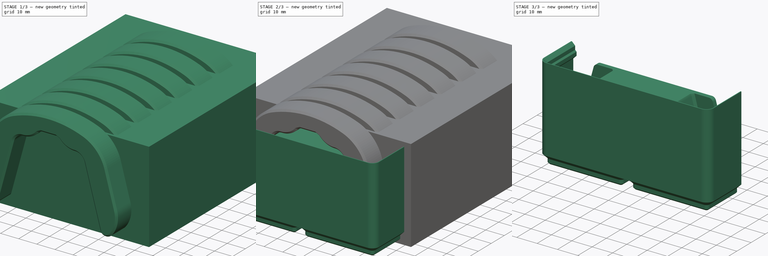
[diagram: build sequence overview — one tinted view per stage of 3, left to right]
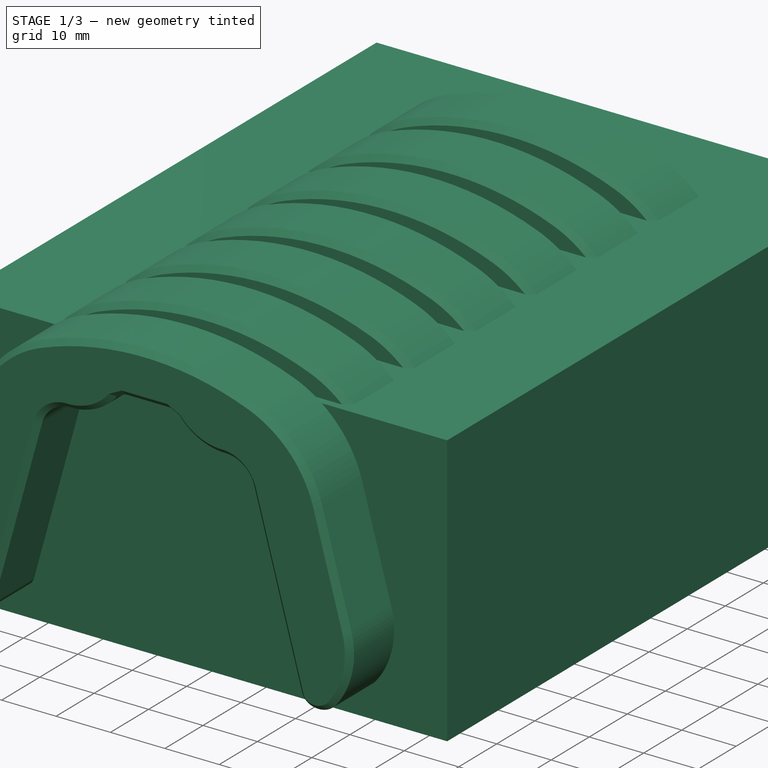
[diagram: stage 1 of 3 — iso view after this stage's code; geometry added in this stage tinted green]
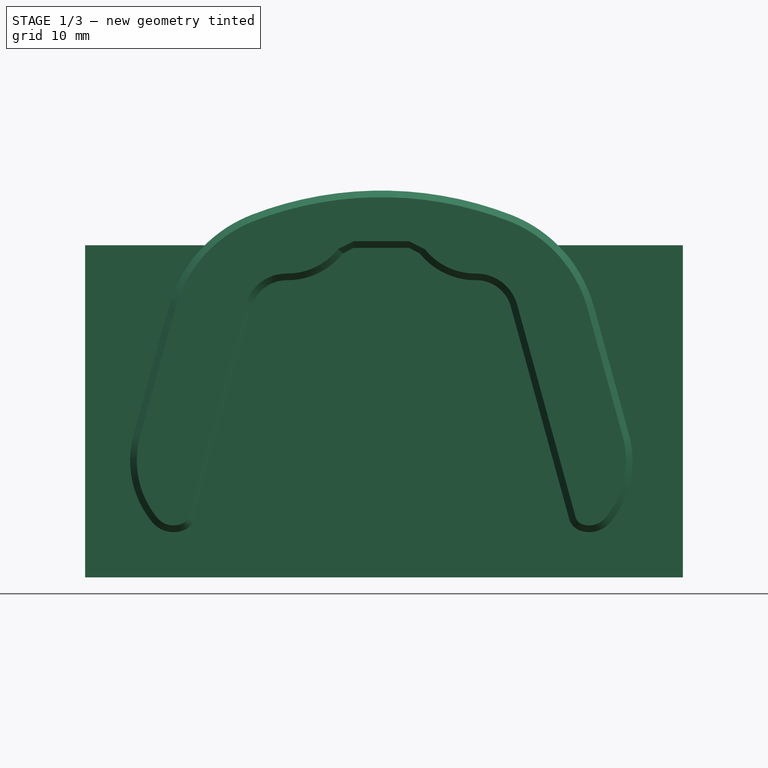
[diagram: stage 1 of 3 — front view after this stage's code; geometry added in this stage tinted green]
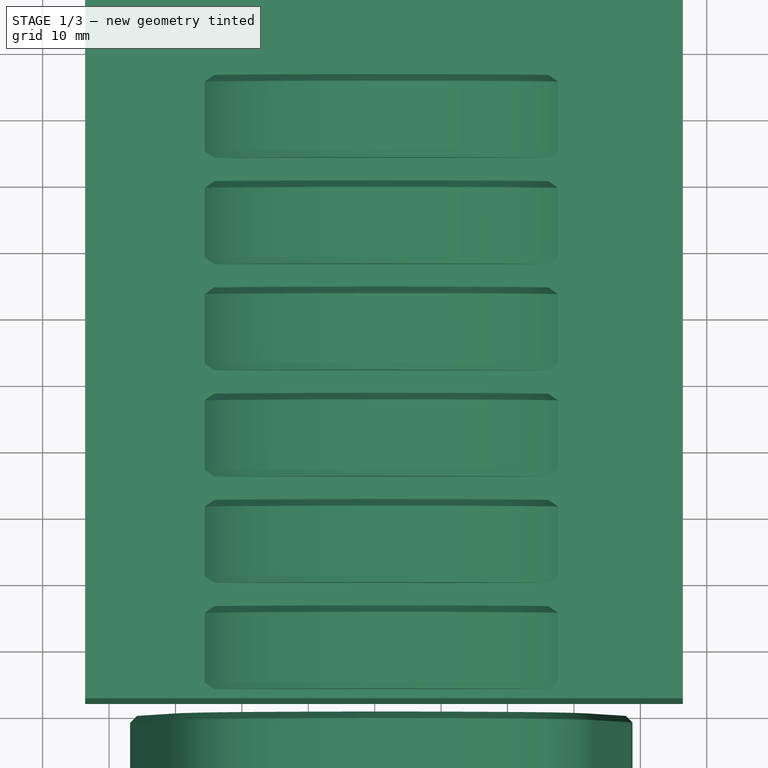
[diagram: stage 1 of 3 — top view after this stage's code; geometry added in this stage tinted green]
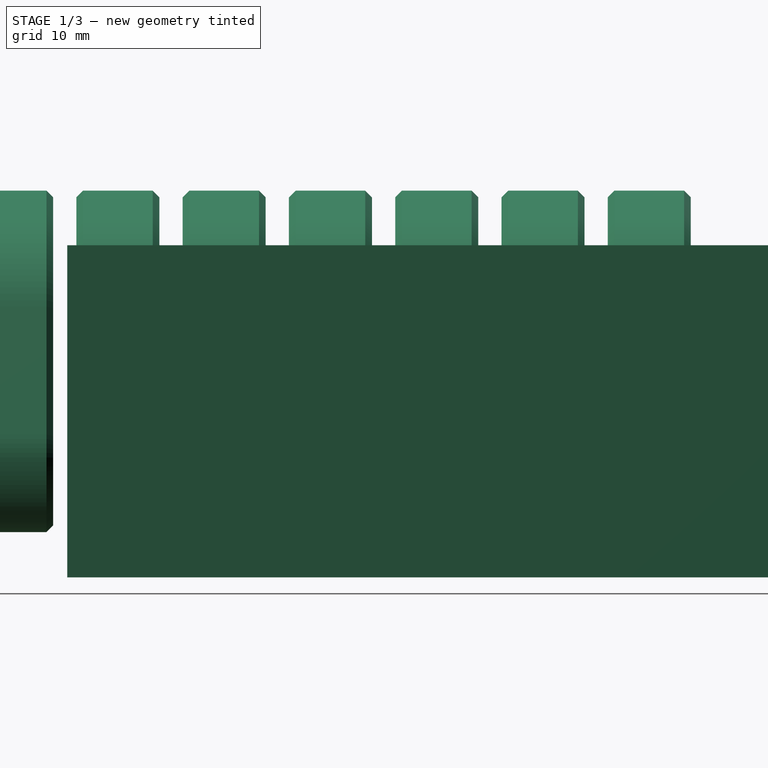
[diagram: stage 1 of 3 — right view after this stage's code; geometry added in this stage tinted green]
FCSTD DOCUMENT  (FreeCAD 1.0R39109 (Git))
Label: clamp-holder
License: All rights reserved
objects: App::Link×7, Part::Cut×2, PartDesign::Plane×1, PartDesign::FeaturePython×1, Sketcher::SketchObject×1, PartDesign::SubShapeBinder×1, PartDesign::Pad×1, PartDesign::Body×1, App::VarSet×1, Part::Compound×1, Part::Box×1
note: 14 computed .brp shape members not serialized (recipe doc carries the construction recipe); baked Part::Feature solids carry a one-line shape summary decoded from their .brp
EXTERNAL_REF file=clamp-template.FCStd obj=Body

FEATURE [Sketcher::SketchObject] Sketch
  ArcFitTolerance = 1e-06
  AttachmentSupport = -> [SimpleStorageBin]
  ExternalGeometry = -> [SimpleStorageBin]
  FullyConstrained = true
  MakeInternals = false
  MapMode = 5
  Placement = pos=(0,-20.75,0) rot=(1,0,0;1.5708rad)
  sketch-geometry (8):
    g0: LineSegment StartX=59 StartY=-35 StartZ=0 EndX=50.2711 EndY=-3.26952 EndZ=0
    g1: LineSegment StartX=-17 StartY=-35 StartZ=0 EndX=-8.27113 EndY=-3.26952 EndZ=0
    g2: LineSegment StartX=-17 StartY=-35 StartZ=0 EndX=59 EndY=-35 EndZ=0
    g3: LineSegment StartX=48.3428 StartY=-1.8 StartZ=0 EndX=-6.34276 EndY=-1.8 EndZ=0
    g4: ArcOfCircle CenterX=-6.34276 CenterY=-3.8 CenterZ=0 NormalX=0 NormalY=0 NormalZ=1 AngleXU=0 Radius=2 StartAngle=1.5708 EndAngle=2.87314
    g5: GeomPoint [constr] X=-7.86687 Y=-1.8 Z=0
    g6: ArcOfCircle CenterX=48.3428 CenterY=-3.8 CenterZ=0 NormalX=0 NormalY=0 NormalZ=1 AngleXU=0 Radius=2 StartAngle=0.268454 EndAngle=1.5708
    g7: GeomPoint [constr] X=49.8669 Y=-1.8 Z=0
  constraints (18):
    c: Coincident(g0,g-3)
    c: PointOnObject(g7,g-4)
    c: Parallel(g-5,g0)
    c: Coincident(g1,g-3)
    c: PointOnObject(g5,g-4)
    c: Parallel(g1,g-8)
    c: Coincident(g2,g1)
    c: Coincident(g2,g0)
    c: PointOnObject(g5,g3)
    c: PointOnObject(g5,g1)
    c: Tangent(g3,g4) = -1.5708
    c: Tangent(g1,g4) = 1.5708
    c: PointOnObject(g7,g3)
    c: PointOnObject(g7,g0)
    c: Tangent(g3,g6) = -1.5708
    c: Tangent(g0,g6) = -1.5708
    c: Equal(g6,g4)
    c: Radius(g6) = 2
FEATURE [PartDesign::SubShapeBinder] Binder
  BindCopyOnChange = 0
  BindMode = 0
  ClaimChildren = false
  Context = -> Body [Binder.]
  Fuse = false
  MakeFace = true
  OffsetFill = false
  OffsetIntersection = false
  OffsetJoinType = 0
  OffsetOpenResult = false
  PartialLoad = false
  Relative = true
  Support = -> [Link]
  _Version = 2
FEATURE [PartDesign::Pad] Pad
  BaseFeature = -> SimpleStorageBin
  Direction = (0,-1,2e-16)
  Length = 10
  Length2 = 10
  Profile = -> Sketch
  ReferenceAxis = -> Sketch [N_Axis]
  Suppressed = false
  Type = 3
  UpToFace = -> SimpleStorageBin [Face189]
FEATURE [PartDesign::Body] Body  label="bin"
  AllowCompound = false
  Group = -> [DatumPlane,Binder,SimpleStorageBin,Sketch,Pad]
  Origin = -> Origin
  Tip = -> Pad
FEATURE [App::Link] Link001  label="template001"
  LinkPlacement = pos=(21,16,-8.15) rot=(1,0,0;1.5708rad)
  LinkedObject = -> <external clamp-template.FCStd>#Body
  Placement = pos=(21,16,-8.15) rot=(1,0,0;1.5708rad)
  expr: .Placement.Base.y = VarSet.start_dist + VarSet.clamp_dist
FEATURE [App::Link] Link002  label="template002"
  LinkPlacement = pos=(21,32,-8.15) rot=(1,0,0;1.5708rad)
  LinkedObject = -> <external clamp-template.FCStd>#Body
  Placement = pos=(21,32,-8.15) rot=(1,0,0;1.5708rad)
  expr: .Placement.Base.y = VarSet.start_dist + VarSet.clamp_dist * 2
FEATURE [App::Link] Link003  label="template003"
  LinkPlacement = pos=(21,48,-8.15) rot=(1,0,0;1.5708rad)
  LinkedObject = -> <external clamp-template.FCStd>#Body
  Placement = pos=(21,48,-8.15) rot=(1,0,0;1.5708rad)
  expr: .Placement.Base.y = VarSet.start_dist + VarSet.clamp_dist * 3
FEATURE [App::Link] Link004  label="template004"
  LinkPlacement = pos=(21,64,-8.15) rot=(1,0,0;1.5708rad)
  LinkedObject = -> <external clamp-template.FCStd>#Body
  Placement = pos=(21,64,-8.15) rot=(1,0,0;1.5708rad)
  expr: .Placement.Base.y = VarSet.start_dist + VarSet.clamp_dist * 4
FEATURE [App::Link] Link005  label="template005"
  LinkPlacement = pos=(21,80,-8.15) rot=(1,0,0;1.5708rad)
  LinkedObject = -> <external clamp-template.FCStd>#Body
  Placement = pos=(21,80,-8.15) rot=(1,0,0;1.5708rad)
  expr: .Placement.Base.y = VarSet.start_dist + VarSet.clamp_dist * 5
FEATURE [App::VarSet] VarSet
  clamp_dist = 16
  start_dist = 0
FEATURE [App::Link] Link006  label="template006"
  LinkPlacement = pos=(21,96,-8.15) rot=(1,0,0;1.5708rad)
  LinkedObject = -> <external clamp-template.FCStd>#Body
  Placement = pos=(21,96,-8.15) rot=(1,0,0;1.5708rad)
  expr: .Placement.Base.y = VarSet.start_dist + VarSet.clamp_dist * 6
FEATURE [Part::Compound] Compound
  Links = -> [Link,Link001,Link002,Link003,Link004,Link006,Link005]
  Placement = pos=(0,0,2.5) rot=(0,0,1;0rad)
FEATURE [Part::Box] Box  label="negative"
  AttacherType = Attacher::AttachEngine3D
  Height = 50
  Length = 90
  Placement = pos=(-23.6,2.13,-43.66) rot=(0,0,1;0rad)
  Width = 110
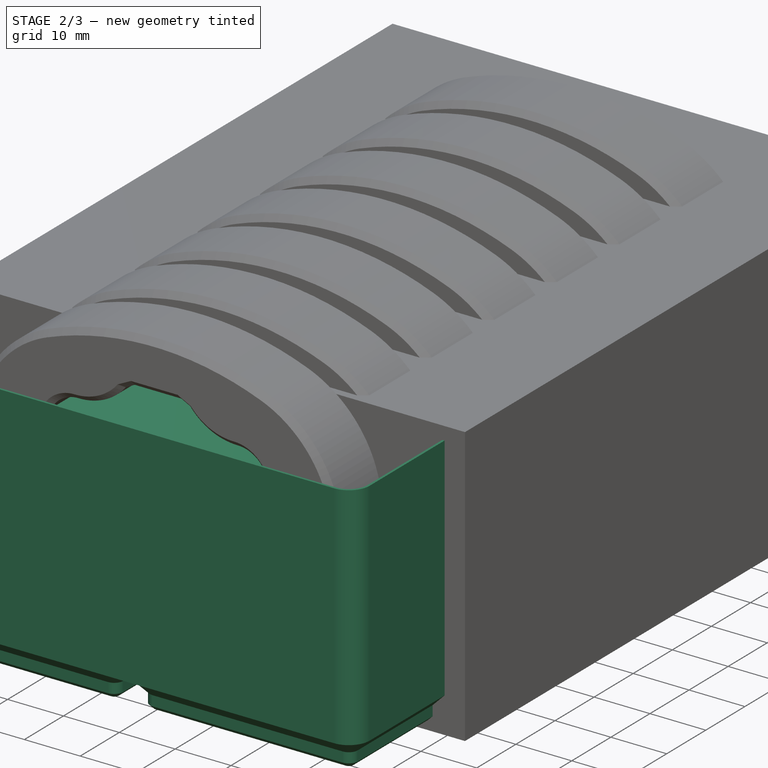
[diagram: stage 2 of 3 — iso view after this stage's code; geometry added in this stage tinted green]
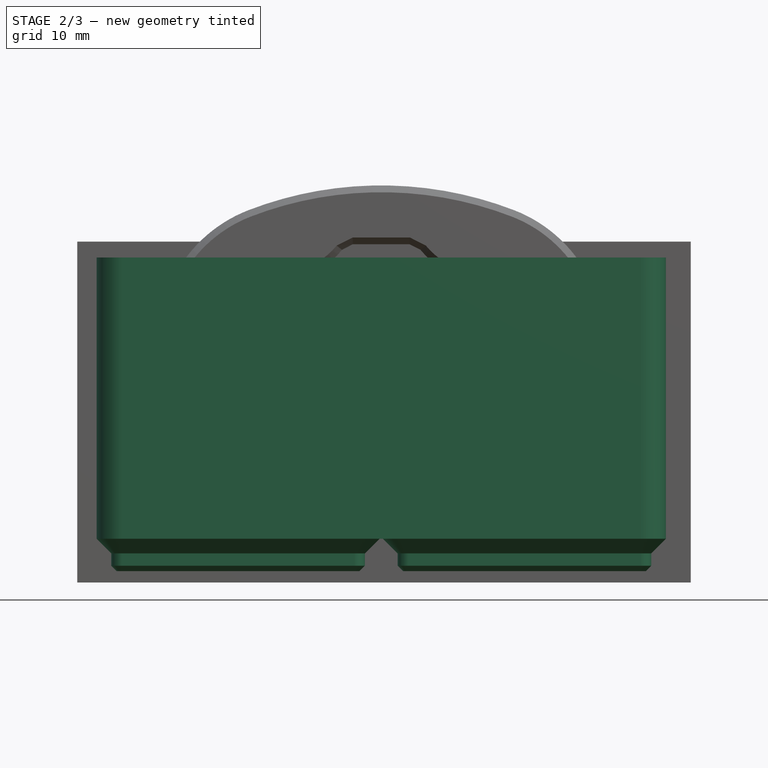
[diagram: stage 2 of 3 — front view after this stage's code; geometry added in this stage tinted green]
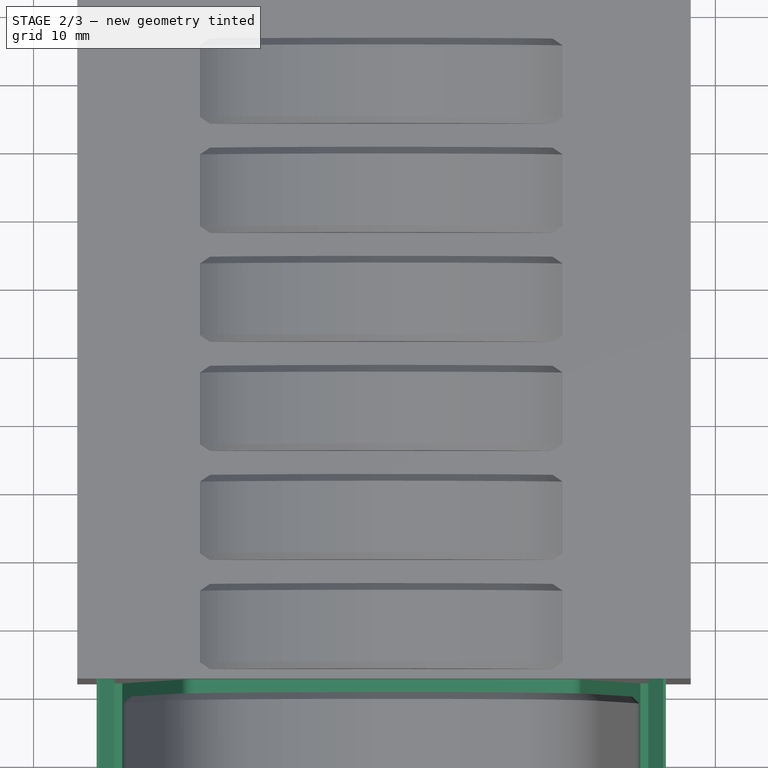
[diagram: stage 2 of 3 — top view after this stage's code; geometry added in this stage tinted green]
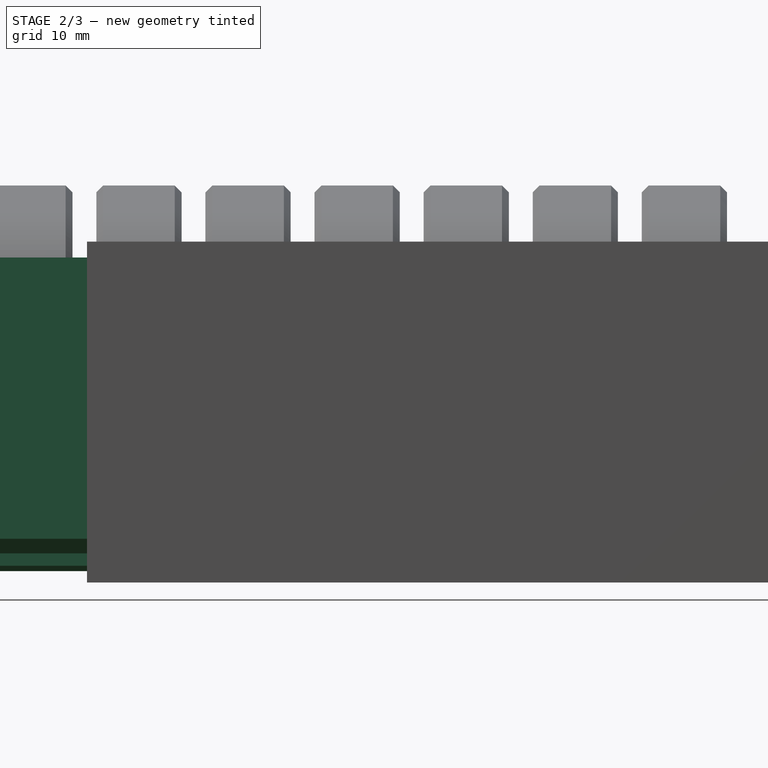
[diagram: stage 2 of 3 — right view after this stage's code; geometry added in this stage tinted green]
FEATURE [PartDesign::Plane] DatumPlane  label="orientation"
  AttachmentOffset = pos=(0,0,21) rot=(0,0,1;0rad)
  AttachmentSupport = -> [YZ_Plane]
  Length = 148.398
  MapMode = 5
  Placement = pos=(21,0,0) rot=(0.57735,0.57735,0.57735;2.0944rad)
  ResizeMode = 0
  Width = 85.6475
FEATURE [App::Link] Link  label="template"
  LinkPlacement = pos=(21,0,-8.15) rot=(1,0,0;1.5708rad)
  LinkedObject = -> <external clamp-template.FCStd>#Body
  Placement = pos=(21,0,-8.15) rot=(1,0,0;1.5708rad)
  expr: .Placement.Base.y = VarSet.start_dist
FEATURE [PartDesign::FeaturePython] SimpleStorageBin  # WARN: FeaturePython — macro-defined, semantics opaque (R4)
  BaseProfileBottomChamfer = 0.8
  BaseProfileHeight = 4.75
  BaseProfileTopChamfer = 2.15
  BaseProfileVerticalSection = 1.8
  BinBottomRadius = 0.8
  BinOuterRadius = 3.75
  BinUnit = 41.5
  BinVerticalRadius = 1.6
  CustomHeight = 42
  DividerThickness = 1.2
  GridSize = 42
  HeightUnitValue = 7
  HeightUnits = 6
  InsideFilletRadius = 1.85
  LabelShelfLength = 42
  LabelShelfPlacement = 0
  LabelShelfStyle = 0
  LabelShelfVerticalThickness = 1.2
  LabelShelfWidth = 12
  MagnetHoleDepth = 2.4
  MagnetHoleDiameter = 6.5
  MagnetHoleDistanceFromEdge = 8
  MagnetHoles = false
  NonStandardHeight = false
  Scoop = false
  ScoopRadius = 21
  ScrewHoleDepth = 6
  ScrewHoleDiameter = 3
  ScrewHoles = false
  SequentialBridgingLayerHeight = 0.2
  StackingLip = true
  StackingLipBottomChamfer = 0.7
  StackingLipTopChamfer = 1.5
  StackingLipTopLedge = 0.4
  StackingLipVerticalSection = 1.8
  Suppressed = false
  Tolerance = 0.25
  TotalHeight = 42
  UsableHeight = 35
  WallThickness = 1
  version = 0.6.0
  xDividerHeight = 0
  xDividers = 0
  xGridUnits = 2
  xTotalWidth = 83.5
  yDividerHeight = 0
  yDividers = 0
  yGridUnits = 3
  yTotalWidth = 125.5
FEATURE [Image::ImagePlane] measure
  Placement = pos=(0.57391,-5.51086,0) rot=(0,0,-1;0.017453rad)
  XSize = 124.813
  YSize = 166.418
FEATURE [Sketcher::SketchObject] Sketch
  ArcFitTolerance = 1e-06
  AttachmentSupport = -> [XY_Plane]
  FullyConstrained = true
  MakeInternals = false
  MapMode = 5
  sketch-geometry (20):
    g0: LineSegment [constr] StartX=-20.25 StartY=0 StartZ=0 EndX=20.25 EndY=0 EndZ=0
    g1: LineSegment [constr] StartX=-28.28 StartY=-29.19 StartZ=0 EndX=28.28 EndY=-29.19 EndZ=0
    g2: LineSegment StartX=-19.4907 StartY=2.76 StartZ=0 EndX=-28.3498 EndY=-29.4437 EndZ=0
    g3: LineSegment StartX=19.4907 StartY=2.76 StartZ=0 EndX=28.28 EndY=-29.19 EndZ=0
    g4: ArcOfCircle CenterX=-14.281 CenterY=1.32684 CenterZ=0 NormalX=0 NormalY=0 NormalZ=1 AngleXU=0 Radius=5.40325 StartAngle=1.56506 EndAngle=2.87314
    g5: ArcOfCircle CenterX=14.281 CenterY=1.32684 CenterZ=0 NormalX=0 NormalY=0 NormalZ=1 AngleXU=0 Radius=5.40325 StartAngle=0.268454 EndAngle=1.57654
    g6: ArcOfCircle CenterX=14.1881 CenterY=17.51 CenterZ=0 NormalX=0 NormalY=0 NormalZ=1 AngleXU=0 Radius=10.7802 StartAngle=3.72295 EndAngle=4.71813
    g7: ArcOfCircle CenterX=-14.1881 CenterY=17.51 CenterZ=0 NormalX=0 NormalY=0 NormalZ=1 AngleXU=0 Radius=10.7802 StartAngle=4.70665 EndAngle=5.70183
    g8: LineSegment StartX=-5.1789 StartY=11.59 StartZ=0 EndX=5.1789 EndY=11.59 EndZ=0
    g9: LineSegment StartX=-32 StartY=2.76 StartZ=0 EndX=-37.3011 EndY=-16.51 EndZ=0
    g10: ArcOfCircle CenterX=-23.1565 CenterY=-20.4011 CenterZ=0 NormalX=0 NormalY=0 NormalZ=1 AngleXU=0 Radius=14.67 StartAngle=2.87314 EndAngle=3.82495
    g11: ArcOfCircle CenterX=-31.2988 CenterY=-27.0308 CenterZ=0 NormalX=0 NormalY=0 NormalZ=1 AngleXU=0 Radius=4.17 StartAngle=3.82495 EndAngle=5.17803
    g12: ArcOfCircle CenterX=-30.3649 CenterY=-28.8893 CenterZ=0 NormalX=0 NormalY=0 NormalZ=1 AngleXU=0 Radius=2.09 StartAngle=5.17803 EndAngle=6.01473
    g13: ArcOfCircle CenterX=30.8171 CenterY=-28.4921 CenterZ=0 NormalX=0 NormalY=0 NormalZ=1 AngleXU=0 Radius=2.63133 StartAngle=3.41005 EndAngle=4.39394
    g14: ArcOfCircle CenterX=31.2988 CenterY=-27.0308 CenterZ=0 NormalX=0 NormalY=0 NormalZ=1 AngleXU=0 Radius=4.17 StartAngle=4.39394 EndAngle=5.59983
    g15: ArcOfCircle CenterX=23.1565 CenterY=-20.4011 CenterZ=0 NormalX=0 NormalY=0 NormalZ=1 AngleXU=0 Radius=14.67 StartAngle=5.59983 EndAngle=6.55164
    g16: LineSegment StartX=37.3011 StartY=-16.51 StartZ=0 EndX=32 EndY=2.76 EndZ=0
    g17: ArcOfCircle CenterX=-12.0251 CenterY=-2.73497 CenterZ=0 NormalX=0 NormalY=0 NormalZ=1 AngleXU=0 Radius=20.7169 StartAngle=1.93945 EndAngle=2.87314
    g18: ArcOfCircle CenterX=12.0251 CenterY=-2.73497 CenterZ=0 NormalX=0 NormalY=0 NormalZ=1 AngleXU=0 Radius=20.7169 StartAngle=0.268454 EndAngle=1.20214
    g19: ArcOfCircle CenterX=2.6e-15 CenterY=-33.8625 CenterZ=0 NormalX=0 NormalY=0 NormalZ=1 AngleXU=0 Radius=54.0865 StartAngle=1.20214 EndAngle=1.93945
  constraints (54):
    c: PointOnObject(g0,g-1)
    c: DistanceX(g0,g-1) = 20.25
    c: DistanceX(g-1,g0) = 20.25
    c: Symmetric(g1,g1,g-2)
    c: DistanceY(g1,g0) = 29.19
    c: DistanceX(g1,g-1) = 28.28
    c: Symmetric(g0,g0,g-2)
    c: Coincident(g3,g1)
    c: PointOnObject(g0,g2)
    c: Tangent(g4,g2) = -1.5708
    c: DistanceY(g-1,g2) = 2.76
    c: PointOnObject(g0,g3)
    c: Horizontal(g2,g3)
    c: Tangent(g5,g3) = 1.5708
    c: Tangent(g6,g5) = 1.5708
    c: DistanceY(g-1,g5) = 6.73
    c: Tangent(g7,g4) = 1.5708
    c: Symmetric(g7,g6,g-2)
    c: Coincident(g8,g7)
    c: Coincident(g8,g6)
    c: Symmetric(g5,g4,g-2)
    c: DistanceX(g4,g-1) = 14.25
    c: DistanceY(g-1,g7) = 17.51
    c: DistanceY(g-1,g7) = 11.59
    c: PointOnObject(g1,g2)
    c: Parallel(g9,g2)
    c: Tangent(g11,g10) = -1.5708
    c: Tangent(g10,g9) = -1.5708
    c: Horizontal(g9,g2)
    c: Tangent(g12,g2) = 1.5708
    c: Tangent(g12,g11) = -1.5708
    c: Coincident(g13,g1)
    c: Radius(g12) = 2.09
    c: Radius(g11) = 4.17
    c: Radius(g10) = 14.67
    c: DistanceX(g12) = -30.3649
    c: Tangent(g3,g13)
    c: Tangent(g14,g13) = -1.5708
    c: Tangent(g15,g14) = -1.5708
    c: Equal(g15,g10)
    c: Equal(g14,g11)
    c: DistanceX(g9) = -32
    c: DistanceY(g9,g9) = 19.27
    c: Symmetric(g15,g9,g-2)
    c: Symmetric(g14,g10,g-2)
    c: Coincident(g16,g15)
    c: Symmetric(g9,g16,g-2)
    c: Tangent(g17,g9) = -1.5708
    c: Vertical(g17,g2)
    c: DistanceY(g7,g17) = 5
    c: Tangent(g18,g16) = -1.5708
    c: Symmetric(g18,g17,g-2)
    c: Coincident(g19,g17)
    c: Tangent(g19,g18) = -1.5708
FEATURE [Part::Feature] gramp_2x2x002_solid  label="gramp-reference"
  Placement = pos=(-98.11,144.83,0) rot=(0,0,1;4.71239rad)
  shape: bbox 79.41 x 121.9 x 12 mm, 12834 faces (baked)
FEATURE [PartDesign::SubShapeBinder] Binder  label="cramp-top"
  BindCopyOnChange = 0
  BindMode = 0
  ClaimChildren = false
  Context = -> Body [Binder.]
  Fuse = false
  MakeFace = true
  OffsetFill = false
  OffsetIntersection = false
  OffsetJoinType = 0
  OffsetOpenResult = false
  PartialLoad = false
  Relative = true
  Support = -> [gramp_2x2x002_solid[Face12426]]
  _Version = 2
FEATURE [PartDesign::Pad] Pad
  Direction = (0,0,1)
  Length = 10
  Length2 = 10
  Offset = -0.5
  Profile = -> Sketch
  ReferenceAxis = -> Sketch [N_Axis]
  Suppressed = false
  Type = 3
  UpToFace = -> Binder [Face1]
FEATURE [PartDesign::Chamfer] Chamfer
  Angle = 45
  Base = -> Pad [Edge1,Edge3,Edge5,Edge17,Edge18,Edge19,Edge20,Edge21,Edge23,Edge35,Edge36,Edge37,Edge38,Edge39]
  BaseFeature = -> Pad
  ChamferType = 0
  FlipDirection = false
  Size = 1
  Size2 = 1
  SupportTransform = false
  Suppressed = false
  UseAllEdges = true
FEATURE [PartDesign::Plane] DatumPlane
  AttachmentSupport = -> [YZ_Plane]
  Length = 60
  MapMode = 5
  Placement = pos=(0,0,0) rot=(0.57735,0.57735,0.57735;2.0944rad)
  ResizeMode = 0
  Width = 60
FEATURE [PartDesign::Body] Body  label="clamp-template"
  AllowCompound = false
  Group = -> [Sketch,Binder,Pad,Chamfer,DatumPlane]
  Origin = -> Origin
  Tip = -> Chamfer
FEATURE [App::VarSet] VarSet
FEATURE [Measure::MeasureArea] Area  label="Area: 11,44 cm^2"
  Area = 1143.77
  Elements = -> [Body]
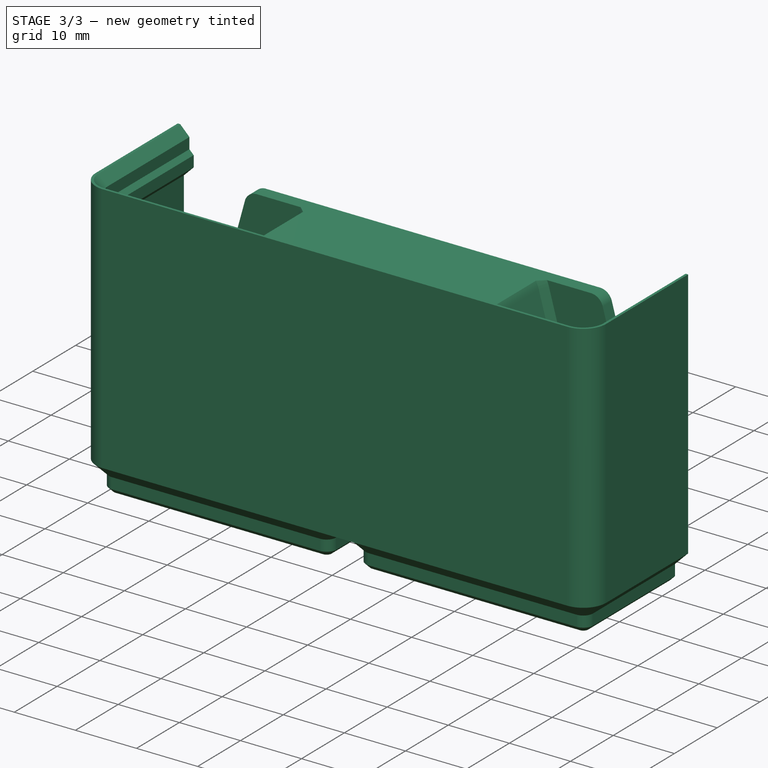
[diagram: stage 3 of 3 — iso view after this stage's code; geometry added in this stage tinted green]
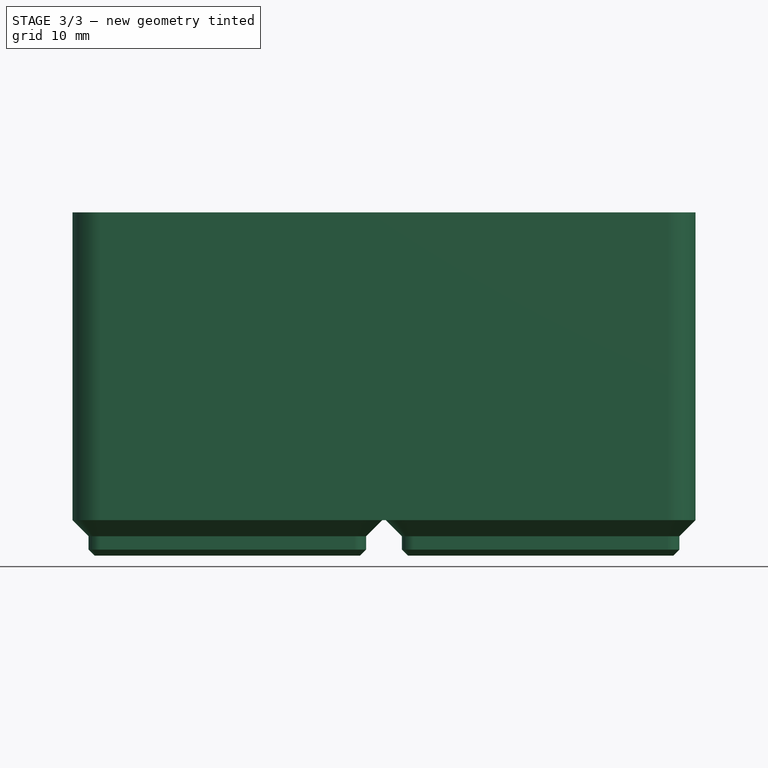
[diagram: stage 3 of 3 — front view after this stage's code; geometry added in this stage tinted green]
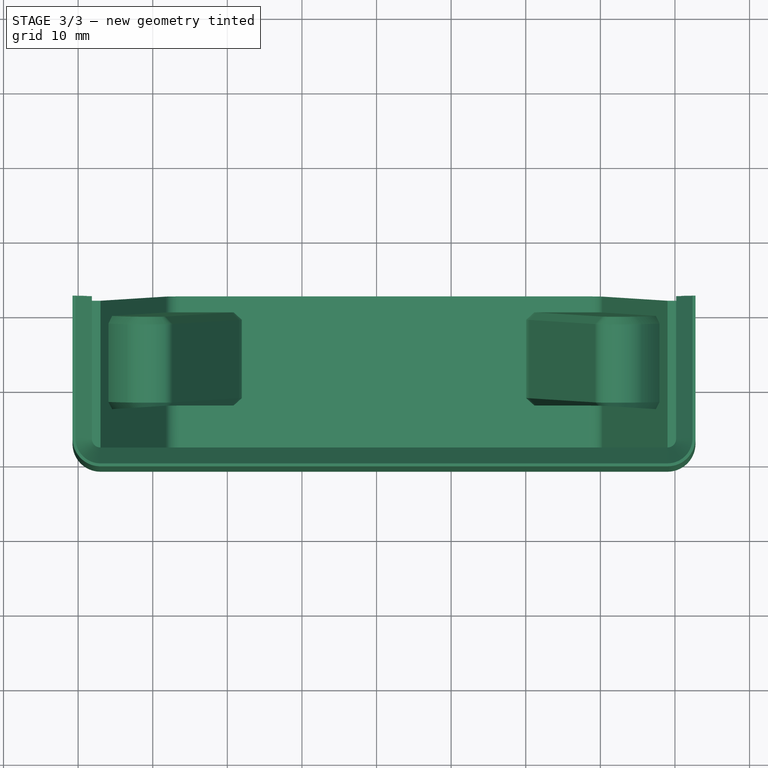
[diagram: stage 3 of 3 — top view after this stage's code; geometry added in this stage tinted green]
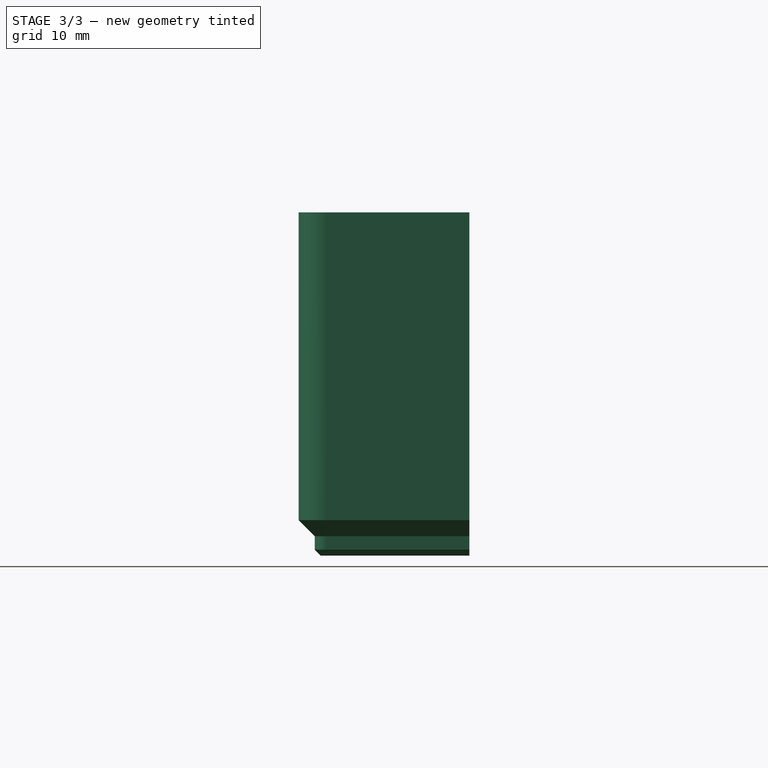
[diagram: stage 3 of 3 — right view after this stage's code; geometry added in this stage tinted green]
FEATURE [Part::Cut] Cut  label="clamb-holder"
  Base = -> Body
  Tool = -> Compound
FEATURE [Part::Cut] Cut001
  Base = -> Cut
  Tool = -> Box

RESOLVED EXTERNAL PARTS (link-assembly join: the EXTERNAL_REF files above that resolve inside this repo's crawl, each included once):
---- part clamp-template.FCStd = doc fcstd_951070155e5a ----
FCSTD DOCUMENT  (FreeCAD 1.0R39109 (Git))
Label: clamp-template
License: All rights reserved
objects: Image::ImagePlane×1, Sketcher::SketchObject×1, Part::Feature×1, PartDesign::SubShapeBinder×1, PartDesign::Pad×1, PartDesign::Chamfer×1, PartDesign::Plane×1, PartDesign::Body×1, App::VarSet×1, Measure::MeasureArea×1
note: 12 computed .brp shape members not serialized (recipe doc carries the construction recipe); baked Part::Feature solids carry a one-line shape summary decoded from their .brp
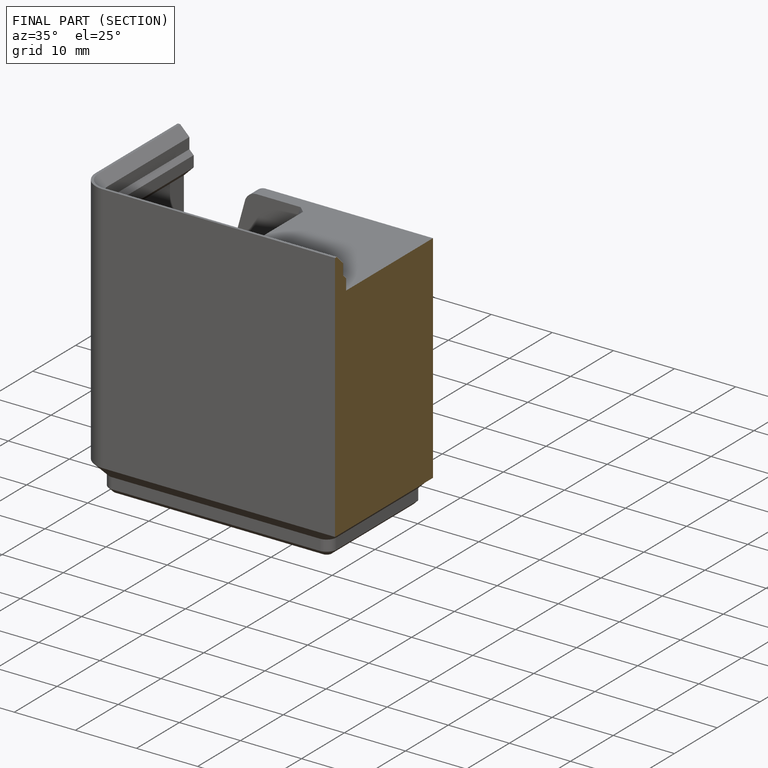
[diagram: finished part — half-section view (interior)]
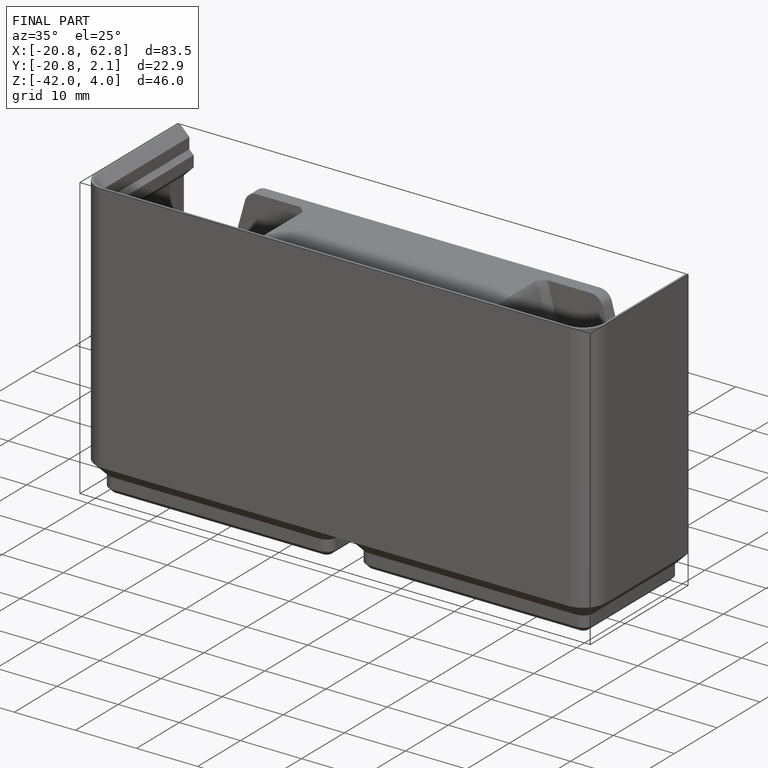
[diagram: finished part — iso view with bounding-box wireframe]
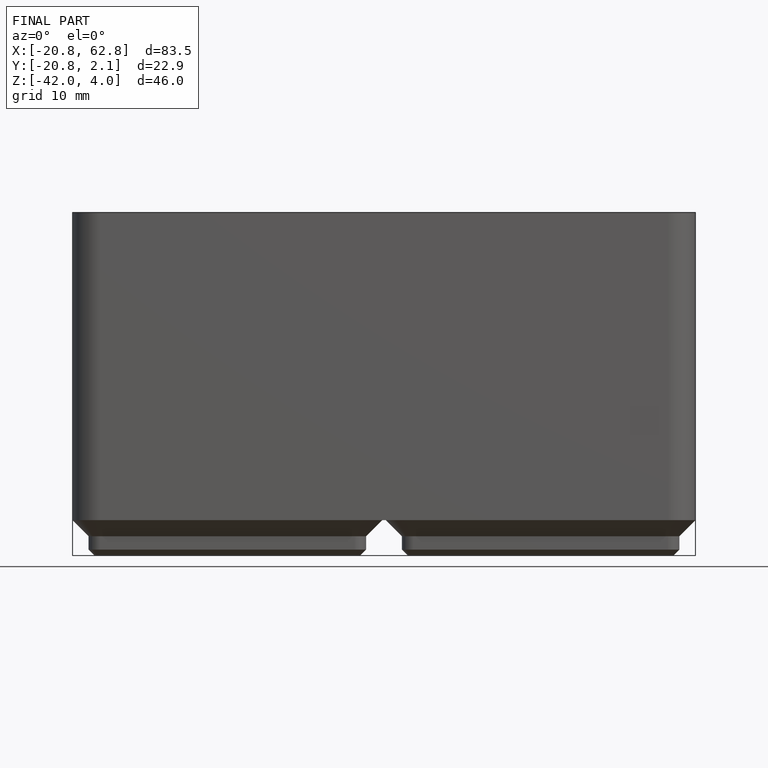
[diagram: finished part — front view with bounding-box wireframe]
